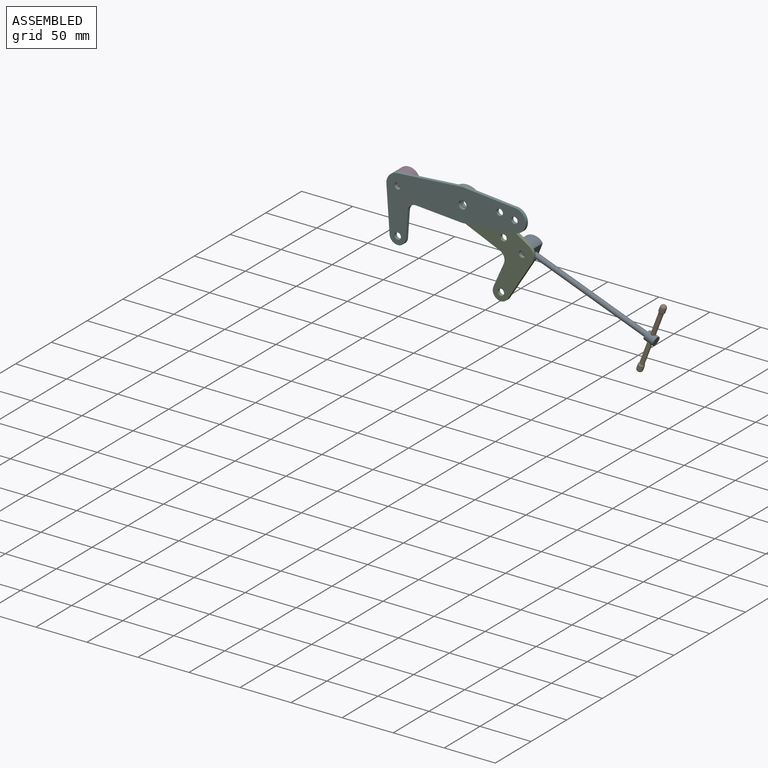
[diagram: assembled view]
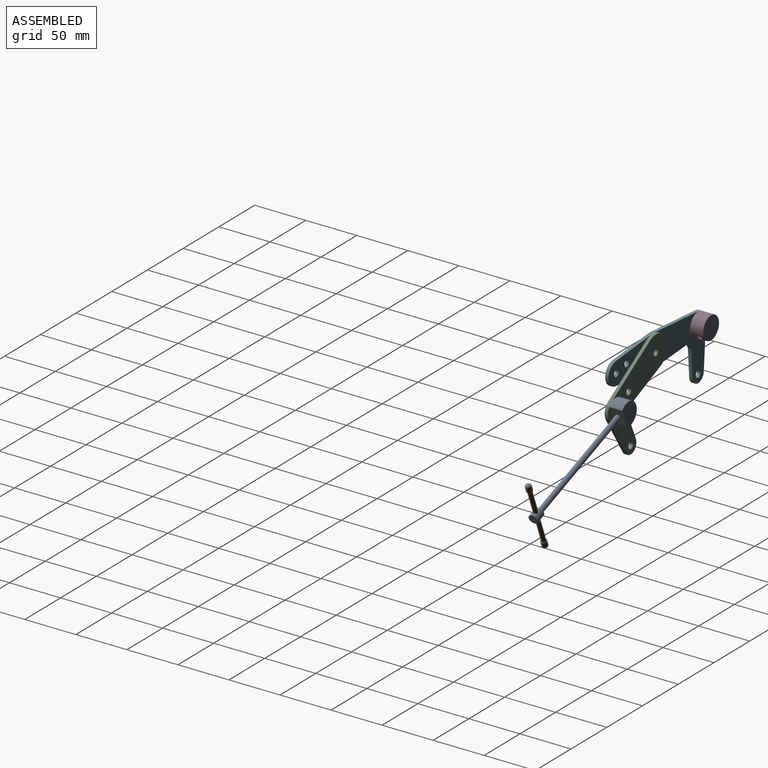
[diagram: assembled view, second angle]
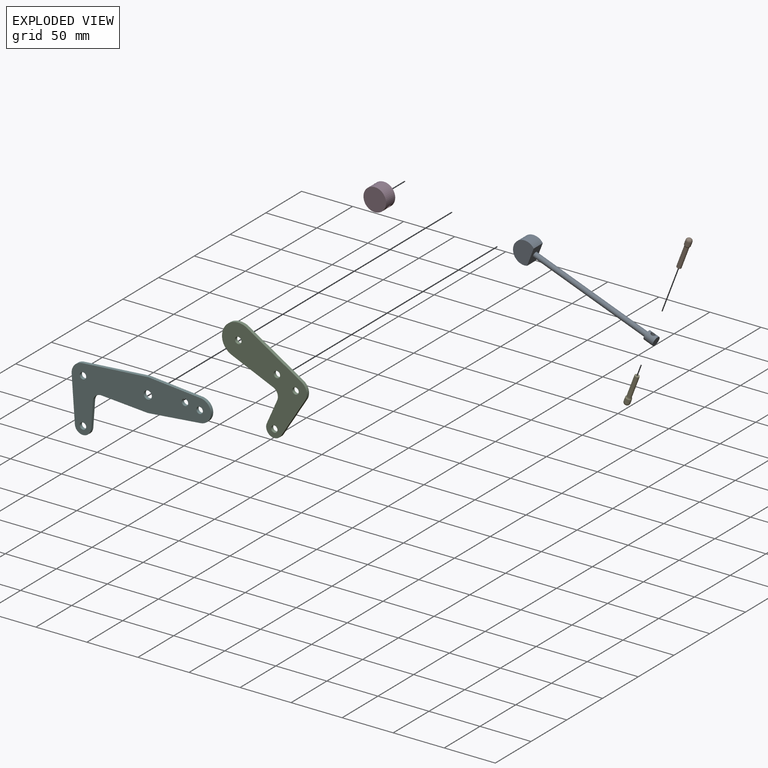
[diagram: exploded view]
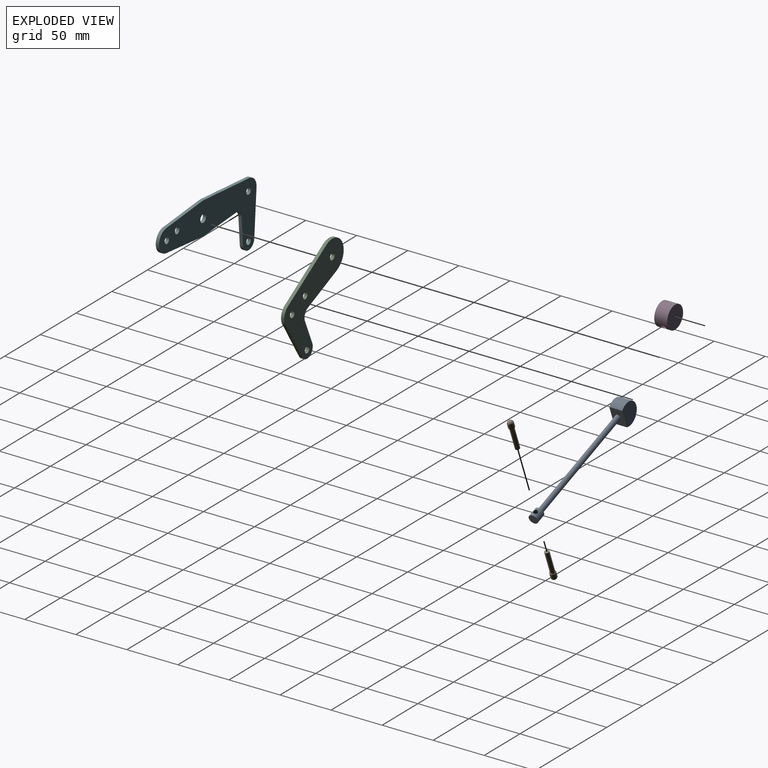
[diagram: exploded view, second angle]
ASSEMBLY  parts=6 mates=5
PART A: 9 faces, bbox 83x12.7x128 mm
  f0: cylinder r=4.45mm len=12.73mm, axis (0.51,0,0.86), area 234.1mm2, adj f6,f7,f8
  f1: cylinder r=2.54mm len=103.59mm, axis (-0.51,0,-0.86), area 1874.8mm2, adj f2,f6
  f2: plane 15.68x12.7mm, normal (0.51,0,0.86), area 211.4mm2, adj f1,f3,f4,f5
  f3: cylinder r=11.11mm len=22.23mm, axis (0,-1,0), area 615.1mm2, adj f2,f4,f5
  f4: plane 22.23x21.23mm, normal (0,1,0), area 327mm2, adj f2,f3
  f5: plane 22.23x21.23mm, normal (0,-1,0), area 327mm2, adj f2,f3
  f6: plane 8.89x7.64mm, normal (-0.51,0,-0.86), area 41.8mm2, adj f0,f1
  f7: plane 8.89x7.64mm, normal (0.51,0,0.86), area 62.1mm2, adj f0
  f8: cylinder r=2.22mm len=9.91mm, axis (-0.86,0,0.51), area 115.6mm2, adj f0
PART B: 6 faces, bbox 27.9x6.4x18.9 mm
  f0: cylinder r=2.22mm len=20.77mm, axis (0.86,0,-0.51), area 299.7mm2, adj f1,f5
  f1: plane 4.43x3.81mm, normal (0.86,0,-0.51), area 15.4mm2, adj f0
  f2: cylinder r=2.93mm len=7.3mm, axis (0.86,0,-0.51), area 81.8mm2, adj f4,f5
  f3: plane 0.77x0.67mm, normal (-0.86,0,0.51), area 0.5mm2, adj f4
  f4: torus R=0.39mm, axis (-0.86,0,0.51), area 50.2mm2, adj f2,f3
  f5: torus R=4.76mm, axis (-0.86,0,0.51), area 30.1mm2, adj f0,f2
PART C: 14 faces, bbox 63x3.2x93.1 mm
  f0: cylinder r=15.88mm len=31.71mm, axis (0,-1,0), area 165.9mm2, adj f1,f9,f12,f13
  f1: plane 43.1x9.75mm, normal (-0.98,0,-0.22), area 140.3mm2, adj f0,f2,f12,f13
  f2: cylinder r=7.95mm len=9.51mm, axis (0,-1,0), area 39.7mm2, adj f1,f3,f12,f13
  f3: plane 24.6x5.47mm, normal (-0.22,0,0.98), area 80mm2, adj f2,f4,f12,f13
  f4: cylinder r=7.94mm len=15.69mm, axis (0,-1,0), area 75.6mm2, adj f3,f5,f12,f13
  f5: plane 44.21x3.36mm, normal (0.08,0,-1), area 140.8mm2, adj f4,f6,f12,f13
  f6: cylinder r=11.11mm len=11.88mm, axis (0,-1,0), area 55.3mm2, adj f5,f9,f12,f13
  f7: cylinder r=3.17mm len=6.35mm, axis (0,-1,0), area 63.3mm2, adj f12,f13
  f8: cylinder r=3.17mm len=6.35mm, axis (0,-1,0), area 63.3mm2, adj f12,f13
  f9: plane 63.16x4.57mm, normal (1,0,0.07), area 201mm2, adj f0,f6,f12,f13
  f10: cylinder r=3.17mm len=6.35mm, axis (0,-1,0), area 63.3mm2, adj f12,f13
  f11: cylinder r=3.17mm len=6.35mm, axis (0,-1,0), area 63.3mm2, adj f12,f13
  f12: plane 93.15x63.02mm, normal (0,1,0), area 2922.6mm2, adj f0,f1,f2,f3,f4,f5,f6,f7
  f13: plane 93.15x63.02mm, normal (0,-1,0), area 2922.6mm2, adj f0,f1,f2,f3,f4,f5,f6,f7
PART D: 4 faces, bbox 22.2x12.7x22.2 mm
  f0: cylinder r=11.11mm len=22.23mm, axis (0,-1,0), area 832.7mm2, adj f1,f2,f3
  f1: plane 22.23x22.23mm, normal (0,1,0), area 387.9mm2, adj f0
  f2: plane 22.23x22.23mm, normal (0,-1,0), area 387.9mm2, adj f0
  f3: cylinder r=2.92mm len=22.23mm, axis (0,0,-1), area 400.6mm2, adj f0
PART E: same geometry as B
PART F: 19 faces, bbox 136.5x3.2x68.3 mm
  f0: cylinder r=7.94mm len=15.83mm, axis (0,1,0), area 75.6mm2, adj f1,f14,f17,f18
  f1: plane 25.14x3.18mm, normal (1,0,-0.07), area 80mm2, adj f0,f2,f17,f18
  f2: cylinder r=7.95mm len=8.53mm, axis (0,1,0), area 39.7mm2, adj f1,f3,f17,f18
  f3: plane 44.07x3.31mm, normal (-0.07,0,-1), area 140.3mm2, adj f2,f4,f17,f18
  f4: cylinder r=15.88mm len=3.18mm, axis (0,1,0), area 8.5mm2, adj f3,f5,f17,f18
  f5: plane 50.35x4.74mm, normal (0.09,0,-1), area 160.6mm2, adj f4,f6,f17,f18
  f6: cylinder r=11.11mm len=22.13mm, axis (0,1,0), area 104.2mm2, adj f5,f7,f17,f18
  f7: plane 50.35x4.74mm, normal (0.09,0,1), area 160.6mm2, adj f6,f8,f17,f18
  f8: cylinder r=15.88mm len=3.18mm, axis (0,1,0), area 8.5mm2, adj f7,f9,f17,f18
  f9: plane 63.14x4.75mm, normal (-0.07,0,1), area 201mm2, adj f8,f10,f17,f18
  f10: cylinder r=11.11mm len=11.88mm, axis (0,1,0), area 55.3mm2, adj f9,f14,f17,f18
  f11: cylinder r=3.17mm len=6.35mm, axis (0,1,0), area 63.3mm2, adj f17,f18
  f12: cylinder r=3.17mm len=6.35mm, axis (0,1,0), area 63.3mm2, adj f17,f18
  f13: cylinder r=3.17mm len=6.35mm, axis (0,1,0), area 63.3mm2, adj f17,f18
  f14: plane 44.22x3.18mm, normal (-1,0,-0.07), area 140.8mm2, adj f0,f10,f17,f18
  f15: cylinder r=3.17mm len=6.35mm, axis (0,1,0), area 63.3mm2, adj f17,f18
  f16: cylinder r=3.98mm len=7.95mm, axis (0,1,0), area 79.3mm2, adj f17,f18
  f17: plane 136.53x68.26mm, normal (0,-1,0), area 4048mm2, adj f0,f1,f2,f3,f4,f5,f6,f7
  f18: plane 136.53x68.26mm, normal (0,1,0), area 4048mm2, adj f0,f1,f2,f3,f4,f5,f6,f7
PLACE A rot(axis=(0,1,0),80.2deg) t=(116.42,3.17,-9.81)mm
PLACE B rot(axis=(0,1,0),80.2deg) t=(118.02,3.17,-5.6)mm
PLACE C rot(axis=(0,-1,0),53.7deg) t=(0,0,0)mm
PLACE D rot(axis=(0,1,0),132.5deg) t=(-29.2,3.18,37.47)mm
PLACE E rot(axis=(0,-1,0),99.8deg) t=(234.5,3.17,-145.49)mm
PLACE F at identity fixed
MATE fastened B.f4 <-> A.f8  axis (-0.36,0,-0.93) through (177.86,9.69,-71.34)mm
MATE revolute D.f0 <-> F.f13  axis (0,-1,0) through (-63.5,0,0)mm
MATE revolute F.f16 <-> C.f10  axis (0,1,0) through (0,0,0)mm
MATE fastened E.f4 <-> A.f8  axis (0.36,0,0.93) through (174.65,9.69,-79.76)mm
MATE revolute A.f3 <-> C.f6  axis (0,-1,0) through (56.12,3.17,-29.72)mm
